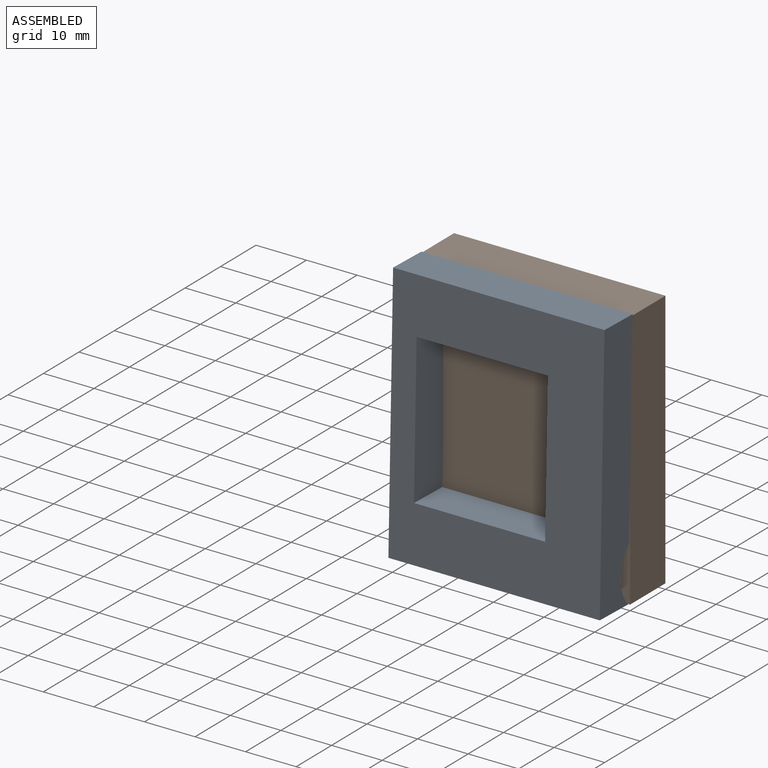
[diagram: assembled view]
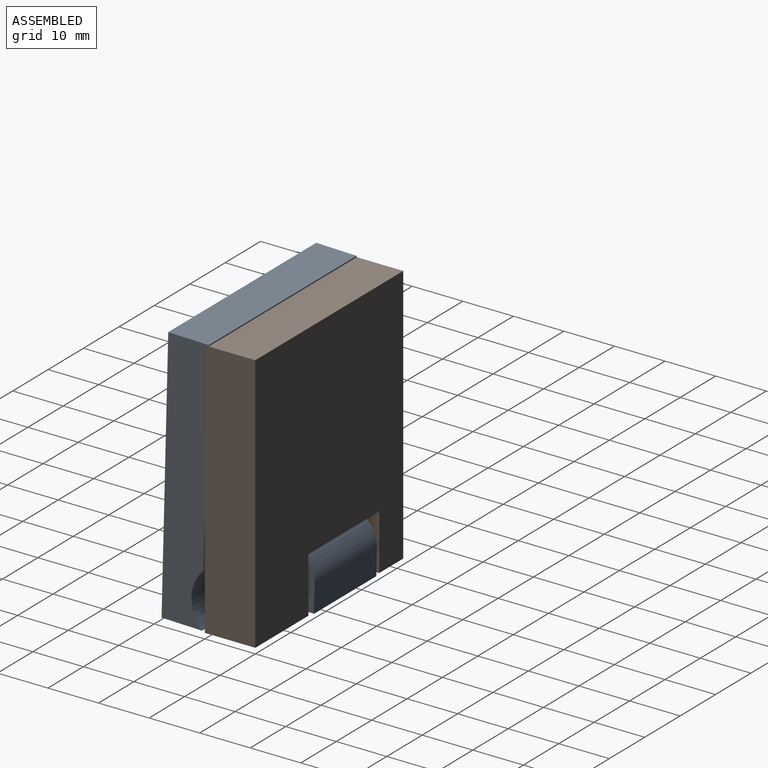
[diagram: assembled view, second angle]
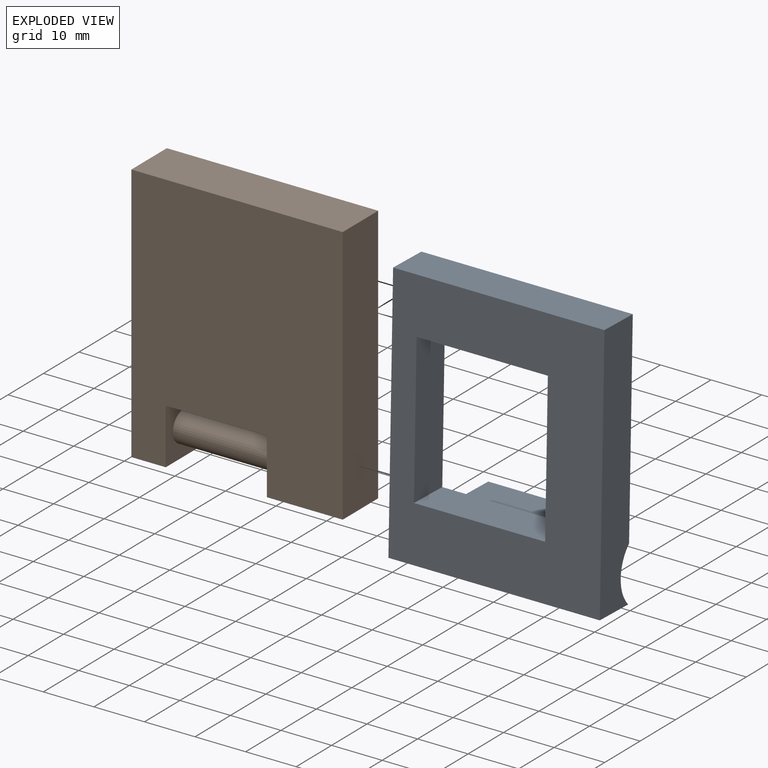
[diagram: exploded view]
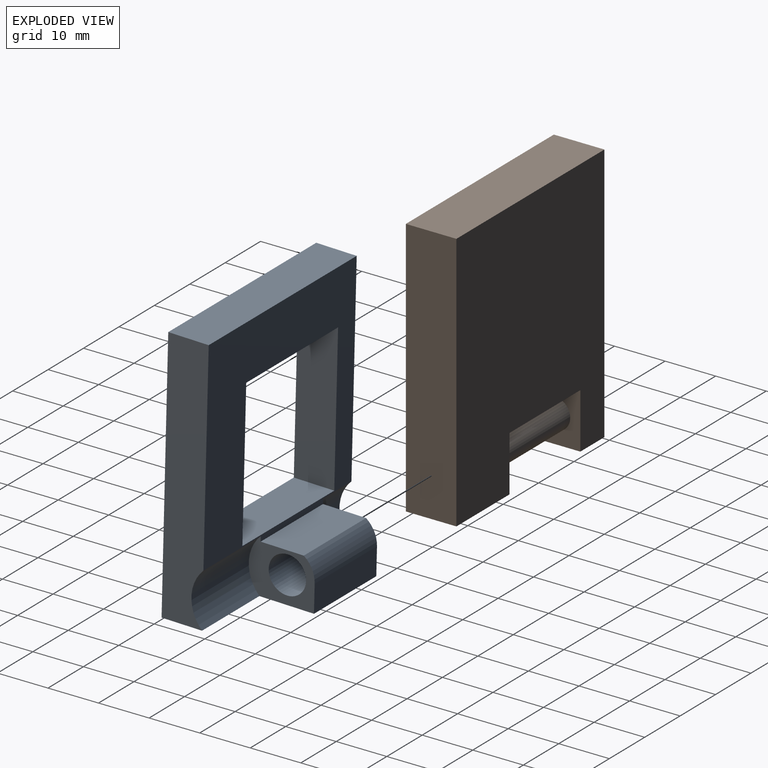
[diagram: exploded view, second angle]
ASSEMBLY  parts=2 mates=2
PART A: 18 faces, bbox 41.8x18.8x51.4 mm
  f0: plane 25.95x8mm, normal (0,0,1), area 207.6mm2, adj f5,f6,f9,f17
  f1: plane 25.95x8mm, normal (0,0,-1), area 207.6mm2, adj f5,f6,f9,f17
  f2: plane 13.04x10.8mm, normal (1,0,0), area 76.5mm2, adj f6,f8,f10,f11,f12,f13,f14
  f3: plane 13.04x10.8mm, normal (-1,0,0), area 76.5mm2, adj f6,f8,f10,f11,f12,f14,f15
  f4: plane 51.4x8mm, normal (1,0,0), area 394.6mm2, adj f5,f6,f7,f8,f13
  f5: plane 51.4x41.8mm, normal (0,-1,0), area 1385.7mm2, adj f0,f1,f4,f7,f8,f9,f16,f17
  f6: plane 41.8x41.6mm, normal (0,1,0), area 951.9mm2, adj f0,f1,f2,f3,f4,f7,f9,f11
  f7: plane 41.8x8mm, normal (0,0,1), area 334.4mm2, adj f4,f5,f6,f16
  f8: plane 41.8x18.8mm, normal (0,0,-1), area 524.5mm2, adj f2,f3,f4,f5,f10,f13,f15,f16
  f9: plane 29.4x8mm, normal (-1,0,0), area 235.2mm2, adj f0,f1,f5,f6
  f10: plane 17.6x5.4mm, normal (0,1,0), area 95mm2, adj f2,f3,f8,f14
  f11: plane 17.6x8.53mm, normal (0,0,1), area 150.1mm2, adj f2,f3,f6,f14
  f12: cylinder r=3.7mm len=17.6mm, axis (-1,0,0), area 409.2mm2, adj f2,f3
  f13: cylinder r=7.64mm len=16.2mm, axis (1,0,0), area 194.3mm2, adj f2,f4,f6,f8
  f14: cylinder r=5.4mm len=17.6mm, axis (1,0,0), area 90.5mm2, adj f2,f3,f10,f11
  f15: cylinder r=7.64mm len=10.8mm, axis (-1,0,0), area 96mm2, adj f3,f6,f8,f16
  f16: plane 51.4x8mm, normal (-1,0,0), area 394.6mm2, adj f5,f6,f7,f8,f15
  f17: plane 29.4x8mm, normal (1,0,0), area 235.2mm2, adj f0,f1,f5,f6
PART B: 11 faces, bbox 41.8x10x51.4 mm
  f0: plane 51.4x10mm, normal (1,0,0), area 514mm2, adj f2,f3,f4,f9
  f1: plane 10x6.8mm, normal (0,0,-1), area 68mm2, adj f2,f3,f7,f10
  f2: plane 51.4x41.8mm, normal (0,-1,0), area 1928.5mm2, adj f0,f1,f4,f5,f6,f7,f9,f10
  f3: plane 51.4x41.8mm, normal (0,1,0), area 1928.5mm2, adj f0,f1,f4,f5,f6,f7,f9,f10
  f4: plane 15x10mm, normal (0,0,-1), area 150mm2, adj f0,f2,f3,f6
  f5: plane 20x10mm, normal (0,0,-1), area 200mm2, adj f2,f3,f6,f7
  f6: plane 11x10mm, normal (-1,0,0), area 81.7mm2, adj f2,f3,f4,f5,f8
  f7: plane 11x10mm, normal (1,0,0), area 81.7mm2, adj f1,f2,f3,f5,f8
  f8: cylinder r=3mm len=20mm, axis (-1,0,0), area 377mm2, adj f6,f7
  f9: plane 41.8x10mm, normal (0,0,1), area 418mm2, adj f0,f2,f3,f10
  f10: plane 51.4x10mm, normal (-1,0,0), area 514mm2, adj f1,f2,f3,f9
PLACE A rot(axis=(-1,0,0),1.5deg) t=(-65,10.26,-0.04)mm
PLACE B t=(-65,10,0)mm
MATE cylindrical B.f8 <-> A.f12  axis (-1,0,0) through (-25,5,5.5)mm
MATE planar B.f0 <-> A.f4  axis (1,0,0) through (0,5,25.7)mm
